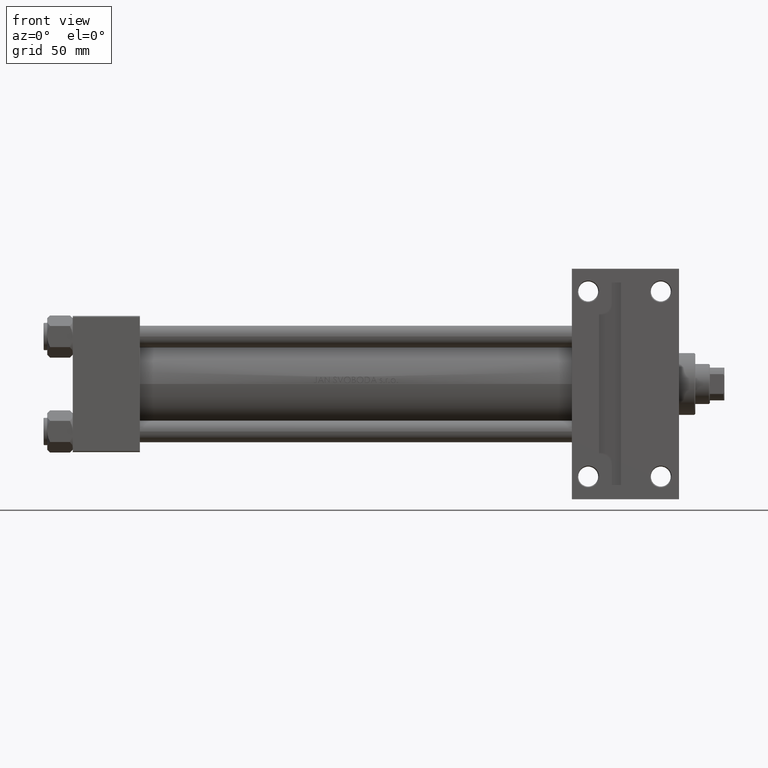
[diagram: clean part render]
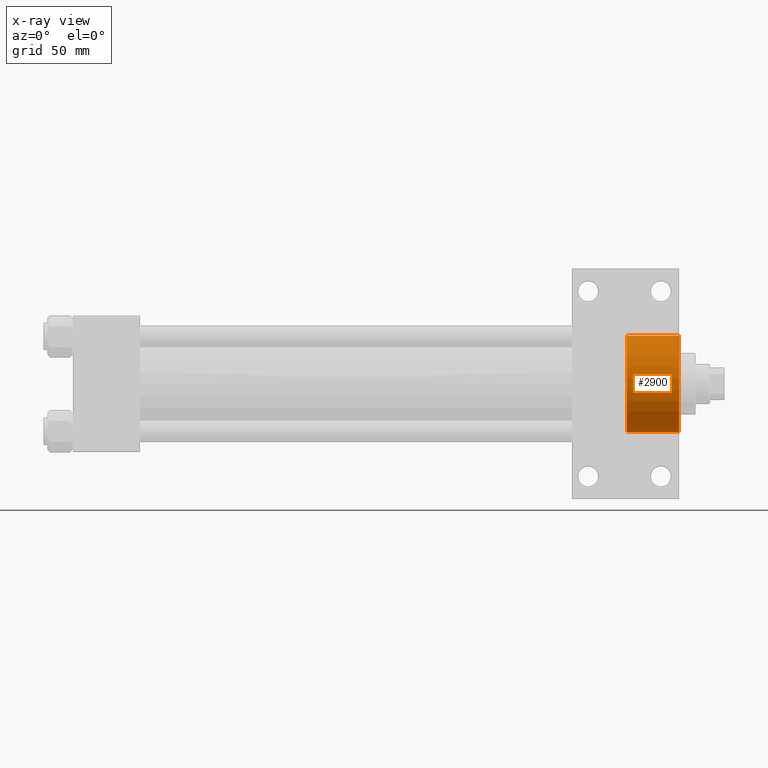
[diagram: x-ray — body ghosted, one internal face saturated and labeled with its STEP entity id]
A machine part, front view, then the same camera in x-ray: the body is ghosted and one INTERNAL B-rep face — a face not visible from any outside direction — is saturated and labeled: STEP entity #2900.
In plain terms, the highlighted cylindrical surface (partial cylindrical patch) has radius 26.5 mm, axis along (-1, 0, 0).
Its self-contained STEP definition (entity closure, byte-faithful):
#542 = EDGE_CURVE ( 'NONE', #33002, #11680, #43227, .T. ) ;
#675 = DIRECTION ( 'NONE',  ( 0.000000000000000000, 0.000000000000000000, 1.000000000000000000 ) ) ;
#1480 = ORIENTED_EDGE ( 'NONE', *, *, #542, .T. ) ;
#2900 = ADVANCED_FACE ( 'NONE', ( #29179 ), #8441, .T. ) ;
#5810 = VERTEX_POINT ( 'NONE', #15998 ) ;
#6820 = CARTESIAN_POINT ( 'NONE',  ( 26.50000000000000355, 3.245314017740486554E-15, 28.69999999999999929 ) ) ;
#7175 = ORIENTED_EDGE ( 'NONE', *, *, #34577, .F. ) ;
#7335 = AXIS2_PLACEMENT_3D ( 'NONE', #44623, #12366, #41717 ) ;
#8441 = CYLINDRICAL_SURFACE ( 'NONE', #42958, 26.50000000000000355 ) ;
#8732 = ORIENTED_EDGE ( 'NONE', *, *, #12139, .F. ) ;
#9292 = CIRCLE ( 'NONE', #20109, 26.50000000000000355 ) ;
#11120 = DIRECTION ( 'NONE',  ( -1.000000000000000000, 0.000000000000000000, 0.000000000000000000 ) ) ;
#11680 = VERTEX_POINT ( 'NONE', #28621 ) ;
#12020 = EDGE_LOOP ( 'NONE', ( #7175, #1480, #36015, #8732 ) ) ;
#12139 = EDGE_CURVE ( 'NONE', #5810, #15316, #24666, .T. ) ;
#12366 = DIRECTION ( 'NONE',  ( 0.000000000000000000, 0.000000000000000000, 1.000000000000000000 ) ) ;
#14980 = CARTESIAN_POINT ( 'NONE',  ( 0.000000000000000000, 0.000000000000000000, 28.69999999999999929 ) ) ;
#15316 = VERTEX_POINT ( 'NONE', #29121 ) ;
#15814 = EDGE_CURVE ( 'NONE', #11680, #15316, #44192, .T. ) ;
#15998 = CARTESIAN_POINT ( 'NONE',  ( -26.50000000000000355, 0.000000000000000000, 28.69999999999999929 ) ) ;
#20109 = AXIS2_PLACEMENT_3D ( 'NONE', #26666, #675, #44497 ) ;
#24467 = DIRECTION ( 'NONE',  ( -0.000000000000000000, -0.000000000000000000, -1.000000000000000000 ) ) ;
#24666 = LINE ( 'NONE', #39345, #27278 ) ;
#24899 = DIRECTION ( 'NONE',  ( -0.000000000000000000, -0.000000000000000000, -1.000000000000000000 ) ) ;
#26666 = CARTESIAN_POINT ( 'NONE',  ( 0.000000000000000000, 0.000000000000000000, 28.69999999999999929 ) ) ;
#27278 = VECTOR ( 'NONE', #24899, 1000.000000000000000 ) ;
#28621 = CARTESIAN_POINT ( 'NONE',  ( 26.50000000000000355, 3.245314017740486554E-15, 0.000000000000000000 ) ) ;
#29121 = CARTESIAN_POINT ( 'NONE',  ( -26.50000000000000355, 0.000000000000000000, 0.000000000000000000 ) ) ;
#29179 = FACE_OUTER_BOUND ( 'NONE', #12020, .T. ) ;
#33002 = VERTEX_POINT ( 'NONE', #6820 ) ;
#34577 = EDGE_CURVE ( 'NONE', #33002, #5810, #9292, .T. ) ;
#36015 = ORIENTED_EDGE ( 'NONE', *, *, #15814, .T. ) ;
#36944 = VECTOR ( 'NONE', #24467, 1000.000000000000000 ) ;
#37104 = DIRECTION ( 'NONE',  ( -0.000000000000000000, -0.000000000000000000, -1.000000000000000000 ) ) ;
#39345 = CARTESIAN_POINT ( 'NONE',  ( -26.50000000000000355, 0.000000000000000000, 28.69999999999999929 ) ) ;
#39623 = CARTESIAN_POINT ( 'NONE',  ( 26.50000000000000355, 3.245314017740486554E-15, 28.69999999999999929 ) ) ;
#41717 = DIRECTION ( 'NONE',  ( 1.000000000000000000, 0.000000000000000000, 0.000000000000000000 ) ) ;
#42958 = AXIS2_PLACEMENT_3D ( 'NONE', #14980, #37104, #11120 ) ;
#43227 = LINE ( 'NONE', #39623, #36944 ) ;
#44192 = CIRCLE ( 'NONE', #7335, 26.50000000000000355 ) ;
#44497 = DIRECTION ( 'NONE',  ( 1.000000000000000000, 0.000000000000000000, 0.000000000000000000 ) ) ;
#44623 = CARTESIAN_POINT ( 'NONE',  ( 0.000000000000000000, 0.000000000000000000, 0.000000000000000000 ) ) ;